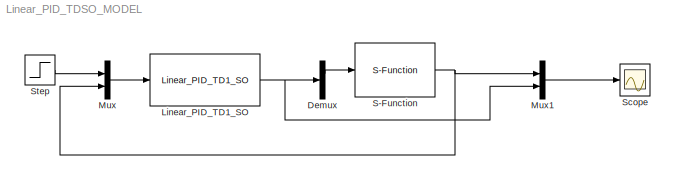
MODEL Linear_PID_TDSO_MODEL
KIND model
BLOCK [Demux] Demux
  DisplayOption = bar
  Outputs = 2
  Ports = [1, 2]
  SID = 10
BLOCK [Reference] Linear_PID_TD1_SO  REF=ADRC/LinearPID/Linear_PID_TD1_SO
  B = [100,300]
  Bet = [30,50,20]
  D = 0.02
  Ports = [1, 1]
  SID = 22
  SourceBlock = ADRC/LinearPID/Linear_PID_TD1_SO
  h = 0.004
  r0 = 1
BLOCK [Mux] Mux
  DisplayOption = bar
  Inputs = 2
  Ports = [2, 1]
  SID = 5
BLOCK [Mux] Mux1
  DisplayOption = bar
  Inputs = 2
  Ports = [2, 1]
  SID = 9
BLOCK [S-Function] S-Function
  EnableBusSupport = off
  FunctionName = Plant3
  Ports = [1, 1]
  SID = 2
BLOCK [Scope] Scope
  DataFormat = StructureWithTime
  Floating = off
  NumInputPorts = 1
  Ports = [1]
  SID = 4
  SampleTime = 0
  YMax = 2
BLOCK [Step] Step
  After = 1.5
  SID = 8
  SampleTime = 0
  Time = 0
LINE Demux:1 -> S-Function:1
NET Linear_PID_TD1_SO:1 -> Demux:1, Mux1:2
LINE Mux1:1 -> Scope:1
LINE Mux:1 -> Linear_PID_TD1_SO:1
NET S-Function:1 -> Mux1:1, Mux:2
LINE Step:1 -> Mux:1
note: NET lines group one-source signal fan-out (src -> all destinations, sorted); 1:1 wires keep LINE
